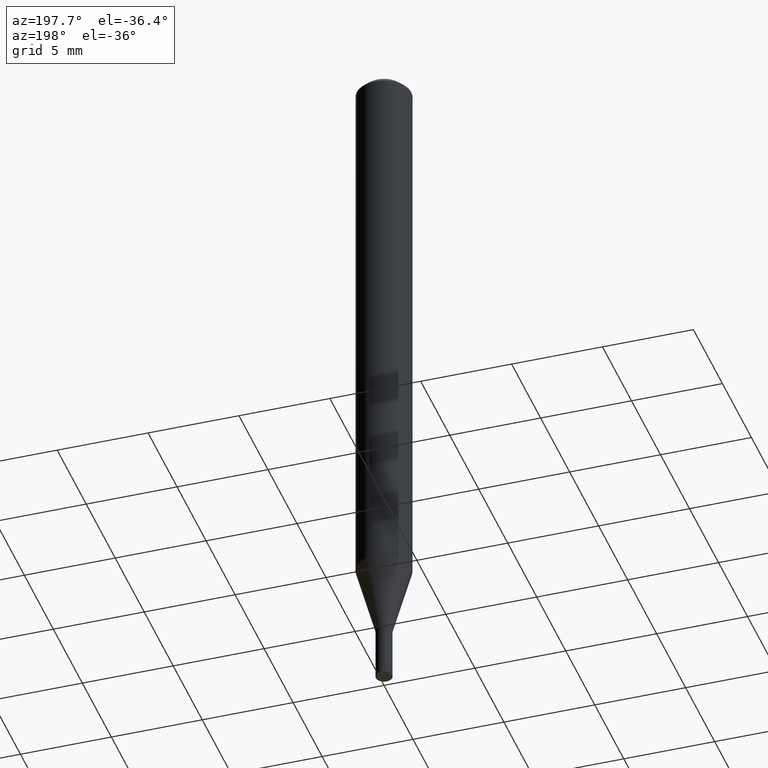
[diagram: clean part render]
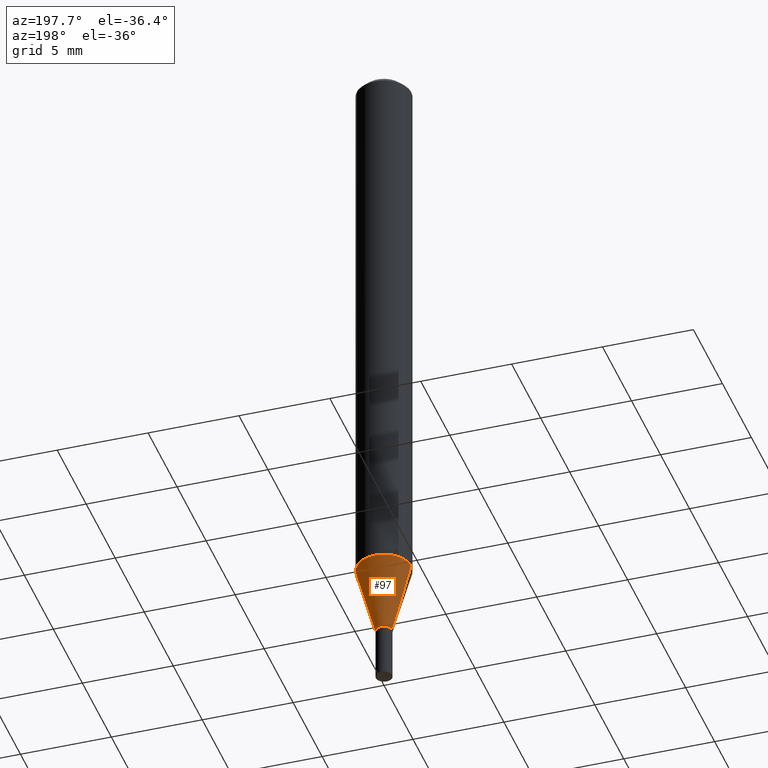
[diagram: same view with one face highlighted and labeled with its STEP entity id]
A machine part, auxiliary view. The second image highlights one B-rep face of the part: STEP entity #97.
In plain terms, the highlighted conical surface has half-angle 15 deg.
Its self-contained STEP definition (entity closure, byte-faithful):
#1 = CARTESIAN_POINT ( 'NONE',  ( 3.007143345765359865E-29, -4.293403722186439259E-15, -1.229679699107027124 ) ) ;
#5 = CONICAL_SURFACE ( 'NONE', #73, 0.01769999999999992413, 0.2617993877991501295 ) ;
#14 = EDGE_CURVE ( 'NONE', #234, #450, #375, .T. ) ;
#30 = CARTESIAN_POINT ( 'NONE',  ( 3.384528827760229323E-29, -4.832210172958913572E-15, -1.384000000000000119 ) ) ;
#34 = CIRCLE ( 'NONE', #150, 0.01769999999999992413 ) ;
#36 = CARTESIAN_POINT ( 'NONE',  ( -0.01769999999999992413, -4.706444108729376279E-15, -1.384000000000000119 ) ) ;
#40 = DIRECTION ( 'NONE',  ( 1.000000000000000000, -6.982962677686247778E-15, 0.000000000000000000 ) ) ;
#67 = DIRECTION ( 'NONE',  ( 0.2588190451025214611, 1.565188264969621573E-15, 0.9659258262890682012 ) ) ;
#73 = AXIS2_PLACEMENT_3D ( 'NONE', #30, #433, #438 ) ;
#77 = FACE_OUTER_BOUND ( 'NONE', #356, .T. ) ;
#81 = CARTESIAN_POINT ( 'NONE',  ( -0.05904999999999999832, -3.873828236720099766E-15, -1.229679699107027124 ) ) ;
#89 = VECTOR ( 'NONE', #382, 39.37007874015747433 ) ;
#97 = ADVANCED_FACE ( 'NONE', ( #77 ), #5, .T. ) ;
#138 = EDGE_CURVE ( 'NONE', #148, #234, #241, .T. ) ;
#148 = VERTEX_POINT ( 'NONE', #466 ) ;
#150 = AXIS2_PLACEMENT_3D ( 'NONE', #321, #364, #40 ) ;
#159 = ORIENTED_EDGE ( 'NONE', *, *, #138, .F. ) ;
#166 = AXIS2_PLACEMENT_3D ( 'NONE', #1, #218, #179 ) ;
#170 = EDGE_CURVE ( 'NONE', #424, #450, #207, .T. ) ;
#179 = DIRECTION ( 'NONE',  ( 1.000000000000000000, -6.982962677686265133E-15, 0.000000000000000000 ) ) ;
#207 = LINE ( 'NONE', #36, #89 ) ;
#218 = DIRECTION ( 'NONE',  ( -2.445468806185136597E-29, 3.491481338843145583E-15, 1.000000000000000000 ) ) ;
#234 = VERTEX_POINT ( 'NONE', #454 ) ;
#241 = LINE ( 'NONE', #389, #261 ) ;
#261 = VECTOR ( 'NONE', #67, 39.37007874015747433 ) ;
#297 = ORIENTED_EDGE ( 'NONE', *, *, #444, .T. ) ;
#321 = CARTESIAN_POINT ( 'NONE',  ( 3.384528827760229323E-29, -4.832210172958913572E-15, -1.384000000000000119 ) ) ;
#352 = ORIENTED_EDGE ( 'NONE', *, *, #14, .F. ) ;
#356 = EDGE_LOOP ( 'NONE', ( #297, #452, #352, #159 ) ) ;
#364 = DIRECTION ( 'NONE',  ( -2.445468806185136597E-29, 3.491481338843145583E-15, 1.000000000000000000 ) ) ;
#375 = CIRCLE ( 'NONE', #166, 0.05904999999999999832 ) ;
#382 = DIRECTION ( 'NONE',  ( -0.2588190451025214611, 5.211531920934551042E-15, 0.9659258262890682012 ) ) ;
#389 = CARTESIAN_POINT ( 'NONE',  ( 0.01769999999999992413, -4.955808612353959180E-15, -1.384000000000000119 ) ) ;
#398 = CARTESIAN_POINT ( 'NONE',  ( -0.01769999999999992413, -4.290136172724738022E-15, -1.384000000000000119 ) ) ;
#424 = VERTEX_POINT ( 'NONE', #398 ) ;
#433 = DIRECTION ( 'NONE',  ( -2.445468806185136597E-29, 3.491481338843145583E-15, 1.000000000000000000 ) ) ;
#438 = DIRECTION ( 'NONE',  ( 1.000000000000000000, -6.982962677686247778E-15, 0.000000000000000000 ) ) ;
#444 = EDGE_CURVE ( 'NONE', #148, #424, #34, .T. ) ;
#450 = VERTEX_POINT ( 'NONE', #81 ) ;
#452 = ORIENTED_EDGE ( 'NONE', *, *, #170, .T. ) ;
#454 = CARTESIAN_POINT ( 'NONE',  ( 0.05904999999999999832, -4.705747668303811812E-15, -1.229679699107027124 ) ) ;
#466 = CARTESIAN_POINT ( 'NONE',  ( 0.01769999999999992413, -4.955808612353959180E-15, -1.384000000000000119 ) ) ;